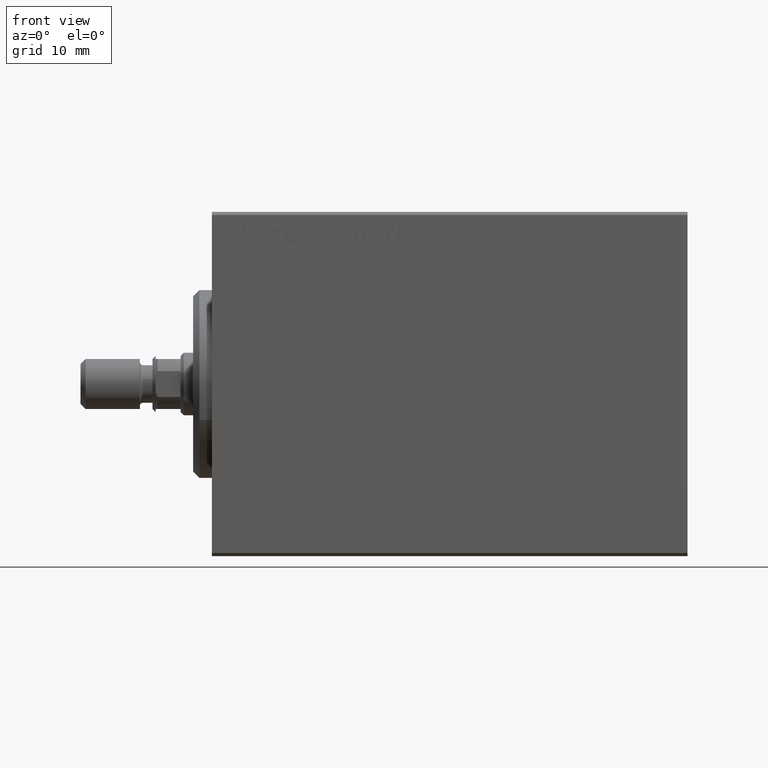
[diagram: clean part render]
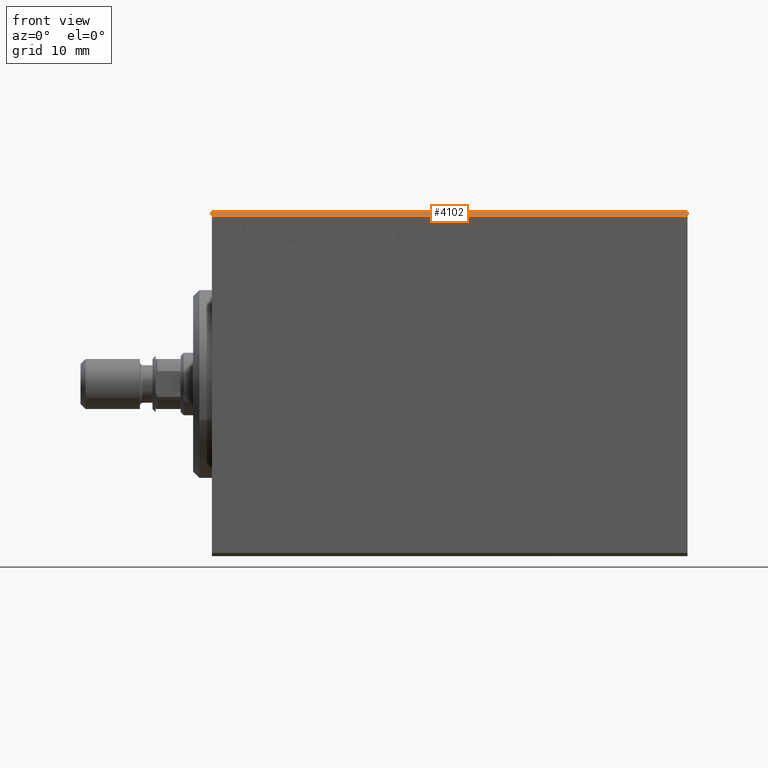
[diagram: same view with one face highlighted and labeled with its STEP entity id]
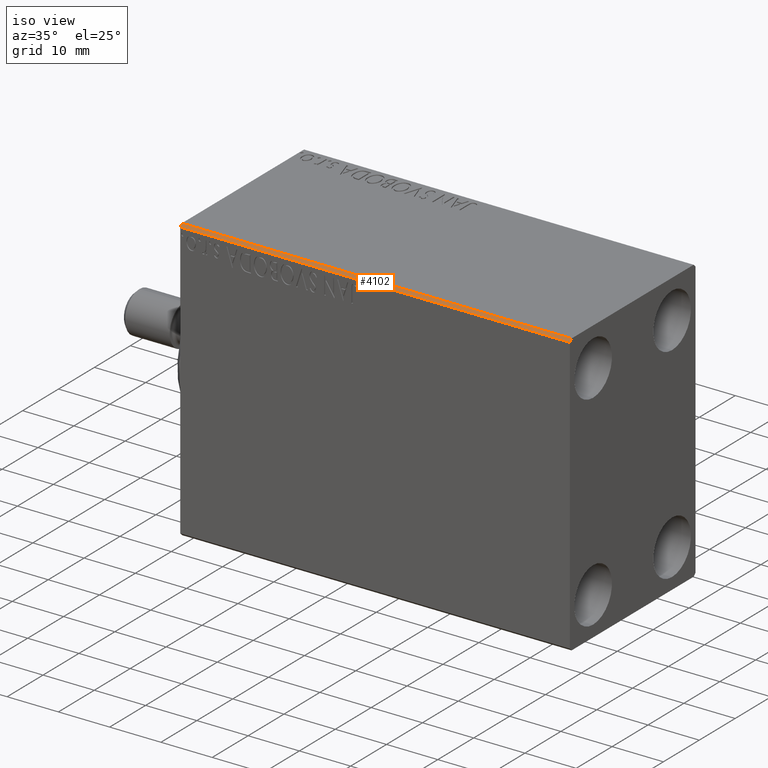
[diagram: same view with one face highlighted and labeled with its STEP entity id]
A machine part, front view. The second image highlights one B-rep face of the part: STEP entity #4102.
A second angle (iso view) of the same face is appended — the face is thin or edge-on in the first view.
In plain terms, the highlighted planar face has unit normal (0, 0.7071, -0.7071).
Its self-contained STEP definition (entity closure, byte-faithful):
#225 = ORIENTED_EDGE ( 'NONE', *, *, #43440, .F. ) ;
#614 = VECTOR ( 'NONE', #22435, 1000.000000000000000 ) ;
#742 = VERTEX_POINT ( 'NONE', #33456 ) ;
#2019 = CARTESIAN_POINT ( 'NONE',  ( 0.000000000000000000, -17.50000000000000000, 26.99999999999998224 ) ) ;
#2249 = VERTEX_POINT ( 'NONE', #29097 ) ;
#2882 = CARTESIAN_POINT ( 'NONE',  ( 76.00000000000000000, -22.24999999999998579, 22.24999999999998579 ) ) ;
#4102 = ADVANCED_FACE ( 'NONE', ( #42707 ), #25574, .F. ) ;
#7621 = CARTESIAN_POINT ( 'NONE',  ( 76.00000000000000000, -16.99999999999998579, 27.49999999999999645 ) ) ;
#8432 = AXIS2_PLACEMENT_3D ( 'NONE', #39325, #29188, #42940 ) ;
#8464 = EDGE_CURVE ( 'NONE', #742, #39139, #11881, .T. ) ;
#10335 = EDGE_CURVE ( 'NONE', #39139, #2249, #32824, .T. ) ;
#11881 = LINE ( 'NONE', #18627, #614 ) ;
#15723 = DIRECTION ( 'NONE',  ( -0.000000000000000000, 0.7071067811865474617, 0.7071067811865474617 ) ) ;
#17334 = EDGE_LOOP ( 'NONE', ( #225, #40146, #31526, #34800 ) ) ;
#18627 = CARTESIAN_POINT ( 'NONE',  ( 76.00000000000000000, -17.50000000000000000, 26.99999999999998224 ) ) ;
#22435 = DIRECTION ( 'NONE',  ( -1.000000000000000000, 0.000000000000000000, 0.000000000000000000 ) ) ;
#23808 = EDGE_CURVE ( 'NONE', #2249, #42678, #38436, .T. ) ;
#25574 = PLANE ( 'NONE',  #8432 ) ;
#25787 = CARTESIAN_POINT ( 'NONE',  ( 76.00000000000000000, -16.99999999999998579, 27.49999999999999645 ) ) ;
#26486 = LINE ( 'NONE', #2882, #28498 ) ;
#28498 = VECTOR ( 'NONE', #33680, 1000.000000000000114 ) ;
#29097 = CARTESIAN_POINT ( 'NONE',  ( 0.000000000000000000, -16.99999999999998579, 27.49999999999999645 ) ) ;
#29188 = DIRECTION ( 'NONE',  ( 0.000000000000000000, 0.7071067811865475727, -0.7071067811865475727 ) ) ;
#31526 = ORIENTED_EDGE ( 'NONE', *, *, #10335, .F. ) ;
#32824 = LINE ( 'NONE', #2019, #39488 ) ;
#33456 = CARTESIAN_POINT ( 'NONE',  ( 76.00000000000000000, -17.50000000000000000, 26.99999999999998224 ) ) ;
#33680 = DIRECTION ( 'NONE',  ( 0.000000000000000000, -0.7071067811865474617, -0.7071067811865474617 ) ) ;
#33877 = VECTOR ( 'NONE', #35048, 1000.000000000000000 ) ;
#34800 = ORIENTED_EDGE ( 'NONE', *, *, #8464, .F. ) ;
#35048 = DIRECTION ( 'NONE',  ( 1.000000000000000000, 0.000000000000000000, 0.000000000000000000 ) ) ;
#38436 = LINE ( 'NONE', #7621, #33877 ) ;
#39139 = VERTEX_POINT ( 'NONE', #39402 ) ;
#39325 = CARTESIAN_POINT ( 'NONE',  ( 76.00000000000000000, -17.50000000000000000, 26.99999999999998224 ) ) ;
#39402 = CARTESIAN_POINT ( 'NONE',  ( 0.000000000000000000, -17.50000000000000000, 26.99999999999998224 ) ) ;
#39488 = VECTOR ( 'NONE', #15723, 1000.000000000000114 ) ;
#40146 = ORIENTED_EDGE ( 'NONE', *, *, #23808, .F. ) ;
#42678 = VERTEX_POINT ( 'NONE', #25787 ) ;
#42707 = FACE_OUTER_BOUND ( 'NONE', #17334, .T. ) ;
#42940 = DIRECTION ( 'NONE',  ( -1.000000000000000000, 0.000000000000000000, 0.000000000000000000 ) ) ;
#43440 = EDGE_CURVE ( 'NONE', #42678, #742, #26486, .T. ) ;